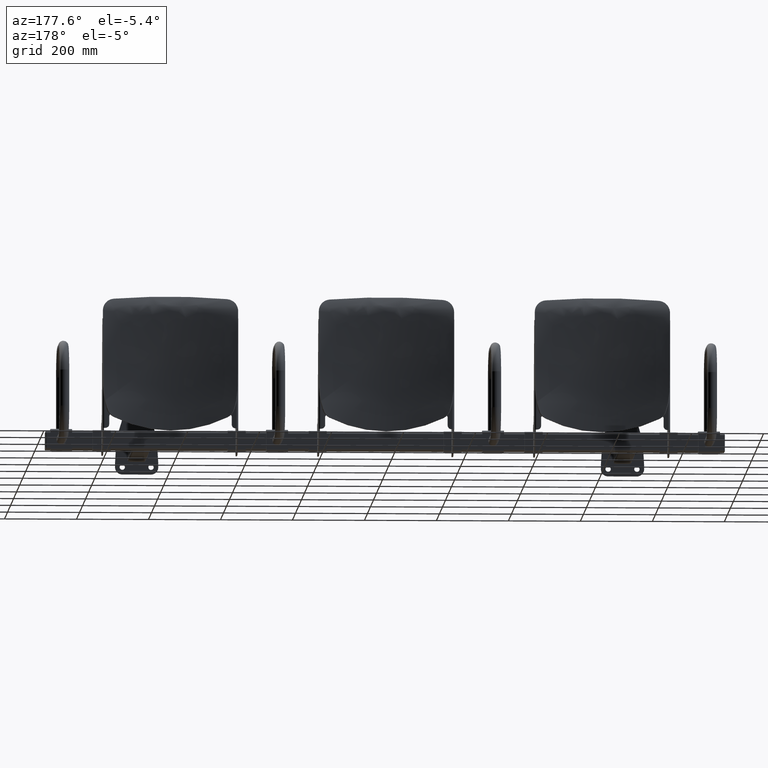
[diagram: clean part render]
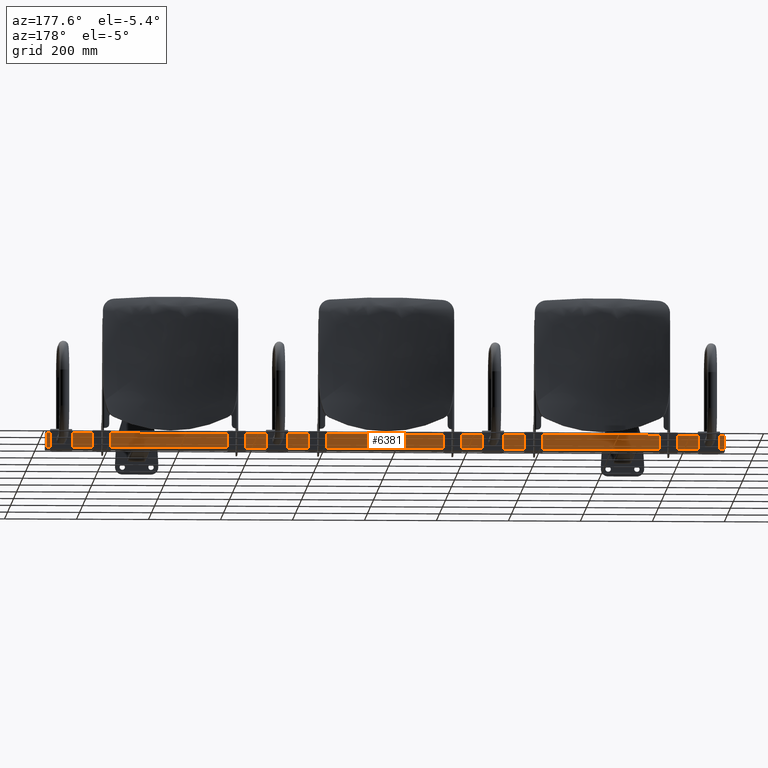
[diagram: same view with one face highlighted and labeled with its STEP entity id]
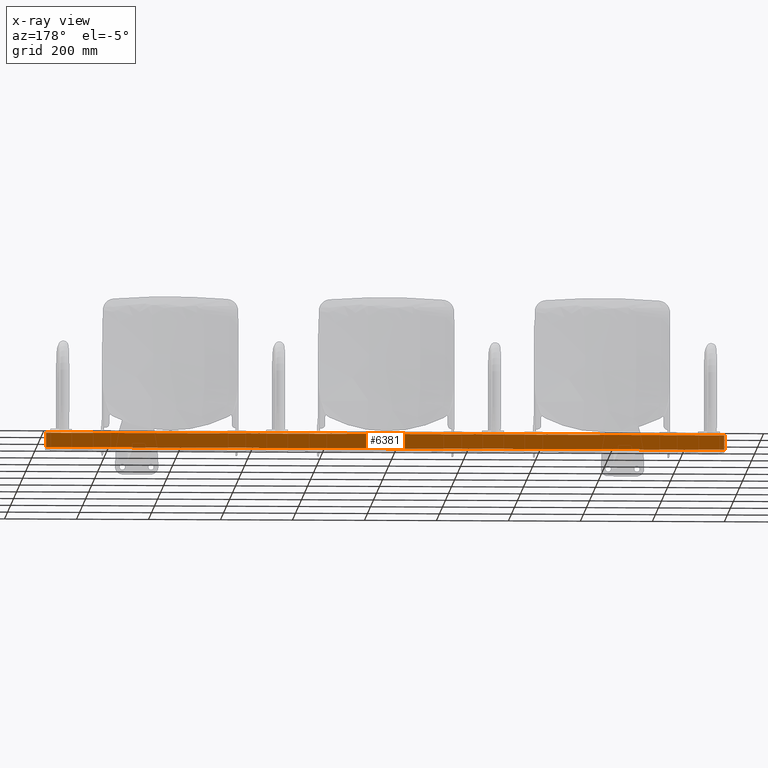
[diagram: x-ray of the same camera — body ghosted, the highlighted face saturated]
A machine part, auxiliary view. The second image highlights one B-rep face of the part: STEP entity #6381.
The next image is the same camera in x-ray: the body ghosted, the highlighted face saturated — about 0% of this face is hidden behind the body in this view.
In plain terms, the highlighted planar face has unit normal (0, -1, 0).
Its self-contained STEP definition (entity closure, byte-faithful):
#1336 = LINE ( 'NONE', #4003, #1346 ) ;
#1346 = VECTOR ( 'NONE', #4010, 1000.000000000000000 ) ;
#1783 = FACE_OUTER_BOUND ( 'NONE', #8966, .T. ) ;
#2888 = DIRECTION ( 'NONE',  ( 0.0000000000000000000, -1.000000000000000000, 0.0000000000000000000 ) ) ;
#2893 = CARTESIAN_POINT ( 'NONE',  ( -944.0000000000000000, 376.0000000000000000, 25.00000000000000000 ) ) ;
#2897 = PLANE ( 'NONE',  #6796 ) ;
#2899 = DIRECTION ( 'NONE',  ( 0.0000000000000000000, -0.0000000000000000000, -1.000000000000000000 ) ) ;
#3659 = CARTESIAN_POINT ( 'NONE',  ( -942.0000000000000000, 376.0000000000000000, -19.99999999999999600 ) ) ;
#4003 = CARTESIAN_POINT ( 'NONE',  ( 942.0000000000000000, 376.0000000000000000, 25.00000000000000000 ) ) ;
#4010 = DIRECTION ( 'NONE',  ( 0.0000000000000000000, 0.0000000000000000000, -1.000000000000000000 ) ) ;
#5209 = EDGE_CURVE ( 'NONE', #7307, #7250, #1336, .T. ) ;
#6381 = ADVANCED_FACE ( 'NONE', ( #1783 ), #2897, .F. ) ;
#6796 = AXIS2_PLACEMENT_3D ( 'NONE', #2893, #2888, #2899 ) ;
#7062 = EDGE_CURVE ( 'NONE', #7295, #7307, #11563, .T. ) ;
#7079 = EDGE_CURVE ( 'NONE', #13486, #7295, #11587, .T. ) ;
#7080 = EDGE_CURVE ( 'NONE', #7250, #13486, #11588, .T. ) ;
#7250 = VERTEX_POINT ( 'NONE', #10530 ) ;
#7295 = VERTEX_POINT ( 'NONE', #10575 ) ;
#7307 = VERTEX_POINT ( 'NONE', #10587 ) ;
#8966 = EDGE_LOOP ( 'NONE', ( #9100, #9101, #9102, #9103 ) ) ;
#9100 = ORIENTED_EDGE ( 'NONE', *, *, #7062, .T. ) ;
#9101 = ORIENTED_EDGE ( 'NONE', *, *, #5209, .T. ) ;
#9102 = ORIENTED_EDGE ( 'NONE', *, *, #7080, .T. ) ;
#9103 = ORIENTED_EDGE ( 'NONE', *, *, #7079, .T. ) ;
#10410 = CARTESIAN_POINT ( 'NONE',  ( -944.0000000000000000, 376.0000000000000000, 20.00000000000000000 ) ) ;
#10411 = DIRECTION ( 'NONE',  ( 1.000000000000000000, -0.0000000000000000000, -0.0000000000000000000 ) ) ;
#10456 = CARTESIAN_POINT ( 'NONE',  ( -942.0000000000000000, 376.0000000000000000, 25.00000000000000000 ) ) ;
#10457 = DIRECTION ( 'NONE',  ( -0.0000000000000000000, -0.0000000000000000000, 1.000000000000000000 ) ) ;
#10464 = CARTESIAN_POINT ( 'NONE',  ( -944.0000000000000000, 376.0000000000000000, -19.99999999999999600 ) ) ;
#10465 = DIRECTION ( 'NONE',  ( -1.000000000000000000, 0.0000000000000000000, 0.0000000000000000000 ) ) ;
#10530 = CARTESIAN_POINT ( 'NONE',  ( 942.0000000000000000, 376.0000000000000000, -19.99999999999999600 ) ) ;
#10575 = CARTESIAN_POINT ( 'NONE',  ( -942.0000000000000000, 376.0000000000000000, 20.00000000000000000 ) ) ;
#10587 = CARTESIAN_POINT ( 'NONE',  ( 942.0000000000000000, 376.0000000000000000, 20.00000000000000000 ) ) ;
#11563 = LINE ( 'NONE', #10410, #11565 ) ;
#11565 = VECTOR ( 'NONE', #10411, 1000.000000000000000 ) ;
#11587 = LINE ( 'NONE', #10456, #11589 ) ;
#11588 = LINE ( 'NONE', #10464, #11591 ) ;
#11589 = VECTOR ( 'NONE', #10457, 1000.000000000000000 ) ;
#11591 = VECTOR ( 'NONE', #10465, 1000.000000000000000 ) ;
#13486 = VERTEX_POINT ( 'NONE', #3659 ) ;